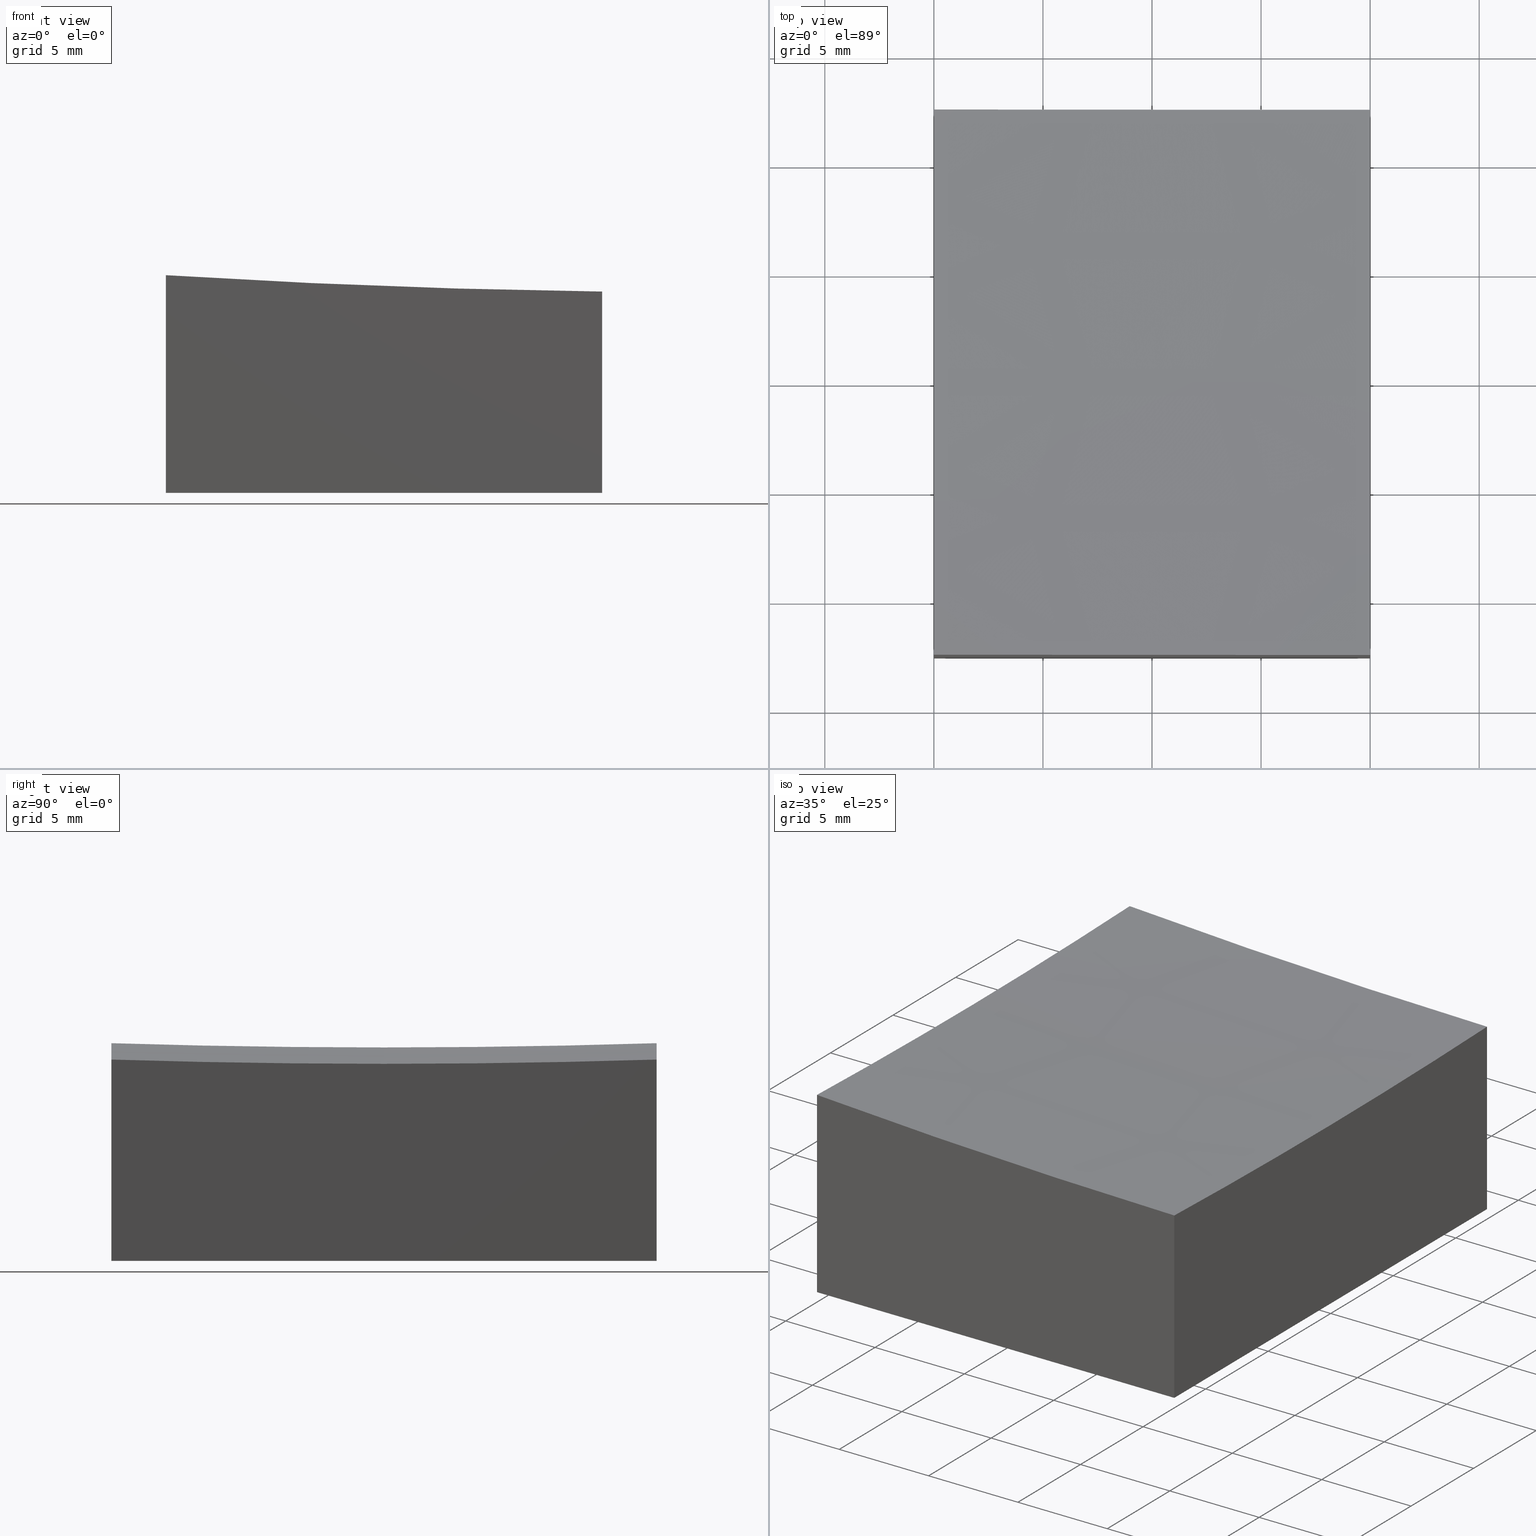
[diagram: canonical four-view strip — front | top / right | iso, engineering-drawing reading convention]
A machine part, canonical four-view strip (front | top / right | iso — engineering-drawing reading convention). The complete STEP part file that produces these views, byte-faithful:
ISO-10303-21;
HEADER;
FILE_DESCRIPTION (( 'STEP AP203' ),
    '1' );
FILE_NAME ('270639.step',
    '2024-12-24T02:21:37',
    ( '' ),
    ( '' ),
    'SwSTEP 2.0',
    'SolidWorks 2020',
    '' );
FILE_SCHEMA (( 'CONFIG_CONTROL_DESIGN' ));
ENDSEC;

DATA;
#1 = ADVANCED_FACE ( 'NONE', ( #100 ), #181, .F. ) ;
#2 = CARTESIAN_POINT ( 'NONE',  ( -9.999999999999996447, -12.50000000000000355, -0.02224248780913207213 ) ) ;
#3 =( LENGTH_UNIT ( ) NAMED_UNIT ( * ) SI_UNIT ( .MILLI., .METRE. ) );
#4 = DIRECTION ( 'NONE',  ( -0.000000000000000000, -0.000000000000000000, -1.000000000000000000 ) ) ;
#5 = ORIENTED_EDGE ( 'NONE', *, *, #190, .T. ) ;
#6 = DIRECTION ( 'NONE',  ( 1.000000000000000000, 0.000000000000000000, 0.000000000000000000 ) ) ;
#7 = CARTESIAN_POINT ( 'NONE',  ( 10.00000000000000178, 12.50000000000000000, -10.00000000000000000 ) ) ;
#8 = LINE ( 'NONE', #67, #43 ) ;
#9 = APPLICATION_CONTEXT ( 'configuration controlled 3d designs of mechanical parts and assemblies' ) ;
#10 = ORIENTED_EDGE ( 'NONE', *, *, #73, .F. ) ;
#11 = CARTESIAN_POINT ( 'NONE',  ( 15.00000000000005151, 0.000000000000000000, 399.0000000000000000 ) ) ;
#12 = CARTESIAN_POINT ( 'NONE',  ( -9.999999999999998224, -12.50000000000000355, -10.00000000000000000 ) ) ;
#13 = ADVANCED_FACE ( 'NONE', ( #121 ), #118, .F. ) ;
#14 = ORIENTED_EDGE ( 'NONE', *, *, #164, .T. ) ;
#15 = CARTESIAN_POINT ( 'NONE',  ( -9.999999999999998224, 0.000000000000000000, 399.0000000000000000 ) ) ;
#16 = PERSON_AND_ORGANIZATION ( #237, #109 ) ;
#17 = APPROVAL_DATE_TIME ( #232, #38 ) ;
#18 = CALENDAR_DATE ( 2024, 24, 12 ) ;
#19 = APPLICATION_PROTOCOL_DEFINITION ( 'international standard', 'config_control_design', 1994, #9 ) ;
#20 = LOCAL_TIME ( 10, 21, 37.00000000000000000, #229 ) ;
#21 = ADVANCED_FACE ( 'NONE', ( #33 ), #185, .F. ) ;
#22 = DIRECTION ( 'NONE',  ( -0.000000000000000000, -0.000000000000000000, -1.000000000000000000 ) ) ;
#23 = DIRECTION ( 'NONE',  ( 1.000000000000000000, 1.734723475976807094E-16, -0.000000000000000000 ) ) ;
#24 = AXIS2_PLACEMENT_3D ( 'NONE', #224, #64, #233 ) ;
#25 = DIRECTION ( 'NONE',  ( -1.000000000000000000, 0.000000000000000000, 0.000000000000000000 ) ) ;
#26 = CC_DESIGN_DATE_AND_TIME_ASSIGNMENT ( #148, #85, ( #66 ) ) ;
#27 = DIRECTION ( 'NONE',  ( 0.000000000000000000, -1.000000000000000000, 0.000000000000000000 ) ) ;
#28 =( NAMED_UNIT ( * ) PLANE_ANGLE_UNIT ( ) SI_UNIT ( $, .RADIAN. ) );
#29 = CARTESIAN_POINT ( 'NONE',  ( 0.000000000000000000, 0.000000000000000000, -10.00000000000000000 ) ) ;
#30 = EDGE_CURVE ( 'NONE', #68, #246, #79, .T. ) ;
#31 = DIRECTION ( 'NONE',  ( 0.000000000000000000, 0.000000000000000000, -1.000000000000000000 ) ) ;
#32 = ORIENTED_EDGE ( 'NONE', *, *, #180, .F. ) ;
#33 = FACE_OUTER_BOUND ( 'NONE', #203, .T. ) ;
#34 = ORIENTED_EDGE ( 'NONE', *, *, #208, .T. ) ;
#35 = PRODUCT ( '270639', '270639', '', ( #156 ) ) ;
#36 = PERSON_AND_ORGANIZATION_ROLE ( 'creator' ) ;
#37 = PRODUCT_DEFINITION_SHAPE ( 'NONE', 'NONE',  #145 ) ;
#38 = APPROVAL ( #210, 'δָ��' ) ;
#39 = ADVANCED_BREP_SHAPE_REPRESENTATION ( '270639', ( #157, #257 ), #88 ) ;
#40 = DATE_AND_TIME ( #170, #247 ) ;
#41 = CALENDAR_DATE ( 2024, 24, 12 ) ;
#42 = LINE ( 'NONE', #215, #123 ) ;
#43 = VECTOR ( 'NONE', #23, 1000.000000000000000 ) ;
#44 = ORIENTED_EDGE ( 'NONE', *, *, #51, .T. ) ;
#45 = DIRECTION ( 'NONE',  ( 0.000000000000000000, 0.000000000000000000, 1.000000000000000000 ) ) ;
#46 = ORIENTED_EDGE ( 'NONE', *, *, #54, .T. ) ;
#47 = DIRECTION ( 'NONE',  ( 0.000000000000000000, 0.000000000000000000, 1.000000000000000000 ) ) ;
#48 = AXIS2_PLACEMENT_3D ( 'NONE', #137, #197, #142 ) ;
#49 = DIRECTION ( 'NONE',  ( -1.000000000000000000, 0.000000000000000000, 1.387778780781445676E-16 ) ) ;
#50 = CARTESIAN_POINT ( 'NONE',  ( 10.00000000000000178, -12.50000000000000000, 10.00000000000000000 ) ) ;
#51 = EDGE_CURVE ( 'NONE', #158, #167, #244, .T. ) ;
#52 = DIRECTION ( 'NONE',  ( -1.734723475976807094E-16, 1.000000000000000000, 0.000000000000000000 ) ) ;
#53 = CARTESIAN_POINT ( 'NONE',  ( 10.00000000000000178, 0.000000000000000000, 399.0000000000000000 ) ) ;
#54 = EDGE_CURVE ( 'NONE', #158, #223, #119, .T. ) ;
#55 = VERTEX_POINT ( 'NONE', #76 ) ;
#56 = DIRECTION ( 'NONE',  ( -0.000000000000000000, -0.000000000000000000, -1.000000000000000000 ) ) ;
#57 = ORIENTED_EDGE ( 'NONE', *, *, #51, .F. ) ;
#58 = ADVANCED_FACE ( 'NONE', ( #166 ), #268, .F. ) ;
#59 = COORDINATED_UNIVERSAL_TIME_OFFSET ( 8, 0, .AHEAD. ) ;
#60 = PERSON_AND_ORGANIZATION_ROLE ( 'design_supplier' ) ;
#61 = AXIS2_PLACEMENT_3D ( 'NONE', #11, #178, #49 ) ;
#62 = CC_DESIGN_APPROVAL ( #81, ( #94 ) ) ;
#63 = SECURITY_CLASSIFICATION_LEVEL ( 'unclassified' ) ;
#64 = DIRECTION ( 'NONE',  ( -1.734723475976807094E-16, 1.000000000000000000, 0.000000000000000000 ) ) ;
#65 = AXIS2_PLACEMENT_3D ( 'NONE', #29, #91, #168 ) ;
#66 = SECURITY_CLASSIFICATION ( '', '', #63 ) ;
#67 = CARTESIAN_POINT ( 'NONE',  ( 10.00000000000000178, -12.50000000000000000, -10.00000000000000000 ) ) ;
#68 = VERTEX_POINT ( 'NONE', #139 ) ;
#69 = DIRECTION ( 'NONE',  ( 0.000000000000000000, 0.000000000000000000, 1.000000000000000000 ) ) ;
#70 = ORIENTED_EDGE ( 'NONE', *, *, #164, .F. ) ;
#71 = DIRECTION ( 'NONE',  ( -0.000000000000000000, -1.000000000000000000, -0.000000000000000000 ) ) ;
#72 = APPROVAL_PERSON_ORGANIZATION ( #270, #81, #147 ) ;
#73 = EDGE_CURVE ( 'NONE', #267, #77, #173, .T. ) ;
#74 = DIRECTION ( 'NONE',  ( 0.000000000000000000, 1.000000000000000000, -0.000000000000000000 ) ) ;
#75 = ORIENTED_EDGE ( 'NONE', *, *, #106, .T. ) ;
#76 = CARTESIAN_POINT ( 'NONE',  ( -9.999999999999998224, 12.49999999999999645, -10.00000000000000000 ) ) ;
#77 = VERTEX_POINT ( 'NONE', #7 ) ;
#78 = DIRECTION ( 'NONE',  ( 1.000000000000000000, 0.000000000000000000, 0.000000000000000000 ) ) ;
#79 = CIRCLE ( 'NONE', #211, 399.8046397929868476 ) ;
#80 = AXIS2_PLACEMENT_3D ( 'NONE', #140, #183, #69 ) ;
#81 = APPROVAL ( #252, 'δָ��' ) ;
#82 = EDGE_CURVE ( 'NONE', #223, #199, #125, .T. ) ;
#83 = CLOSED_SHELL ( 'NONE', ( #21, #216, #1, #272, #13, #58, #111 ) ) ;
#84 = CC_DESIGN_APPROVAL ( #38, ( #145 ) ) ;
#85 = DATE_TIME_ROLE ( 'classification_date' ) ;
#86 = PERSON_AND_ORGANIZATION ( #237, #109 ) ;
#87 = AXIS2_PLACEMENT_3D ( 'NONE', #254, #195, #265 ) ;
#88 =( GEOMETRIC_REPRESENTATION_CONTEXT ( 3 ) GLOBAL_UNCERTAINTY_ASSIGNED_CONTEXT ( ( #129 ) ) GLOBAL_UNIT_ASSIGNED_CONTEXT ( ( #3, #28, #222 ) ) REPRESENTATION_CONTEXT ( 'NONE', 'WORKASPACE' ) );
#89 = COORDINATED_UNIVERSAL_TIME_OFFSET ( 8, 0, .AHEAD. ) ;
#90 = PRODUCT_RELATED_PRODUCT_CATEGORY ( 'detail', '', ( #35 ) ) ;
#91 = DIRECTION ( 'NONE',  ( 0.000000000000000000, -0.000000000000000000, 1.000000000000000000 ) ) ;
#92 = CC_DESIGN_PERSON_AND_ORGANIZATION_ASSIGNMENT ( #251, #150, ( #35 ) ) ;
#93 = AXIS2_PLACEMENT_3D ( 'NONE', #15, #78, #174 ) ;
#94 = PRODUCT_DEFINITION_FORMATION_WITH_SPECIFIED_SOURCE ( '�κ�', '', #35, .NOT_KNOWN. ) ;
#95 = ORIENTED_EDGE ( 'NONE', *, *, #82, .F. ) ;
#96 = CARTESIAN_POINT ( 'NONE',  ( 10.00000000000000178, 12.50000000000000000, -10.00000000000000000 ) ) ;
#97 = EDGE_LOOP ( 'NONE', ( #95, #240, #196, #32 ) ) ;
#98 = LINE ( 'NONE', #50, #126 ) ;
#99 = DIRECTION ( 'NONE',  ( -1.000000000000000000, 0.000000000000000000, 1.387778780781445676E-16 ) ) ;
#100 = FACE_OUTER_BOUND ( 'NONE', #136, .T. ) ;
#101 = LINE ( 'NONE', #110, #276 ) ;
#102 = APPLICATION_CONTEXT ( 'configuration controlled 3d designs of mechanical parts and assemblies' ) ;
#103 = PLANE ( 'NONE',  #186 ) ;
#104 = ORIENTED_EDGE ( 'NONE', *, *, #30, .T. ) ;
#105 = FACE_OUTER_BOUND ( 'NONE', #97, .T. ) ;
#106 = EDGE_CURVE ( 'NONE', #175, #158, #149, .T. ) ;
#107 = CALENDAR_DATE ( 2024, 24, 12 ) ;
#108 = DATE_TIME_ROLE ( 'creation_date' ) ;
#109 = ORGANIZATION ( 'δָ��', 'δָ��', '' ) ;
#110 = CARTESIAN_POINT ( 'NONE',  ( 10.00000000000000178, 12.50000000000000000, 10.00000000000000000 ) ) ;
#111 = ADVANCED_FACE ( 'NONE', ( #105 ), #132, .F. ) ;
#112 = ORIENTED_EDGE ( 'NONE', *, *, #255, .T. ) ;
#113 = AXIS2_PLACEMENT_3D ( 'NONE', #242, #74, #99 ) ;
#114 = FACE_OUTER_BOUND ( 'NONE', #134, .T. ) ;
#115 = ORIENTED_EDGE ( 'NONE', *, *, #73, .T. ) ;
#116 = CARTESIAN_POINT ( 'NONE',  ( 10.00000000000000178, 0.000000000000000000, 399.0000000000000000 ) ) ;
#117 = CARTESIAN_POINT ( 'NONE',  ( 10.00000000000000178, -12.50000000000000000, -0.7733733004237630659 ) ) ;
#118 = PLANE ( 'NONE',  #87 ) ;
#119 = CIRCLE ( 'NONE', #93, 399.2179855667827155 ) ;
#120 = ORIENTED_EDGE ( 'NONE', *, *, #255, .F. ) ;
#121 = FACE_OUTER_BOUND ( 'NONE', #143, .T. ) ;
#122 = ORIENTED_EDGE ( 'NONE', *, *, #180, .T. ) ;
#123 = VECTOR ( 'NONE', #22, 1000.000000000000000 ) ;
#124 = VECTOR ( 'NONE', #71, 1000.000000000000000 ) ;
#125 = CIRCLE ( 'NONE', #269, 399.9999999999999432 ) ;
#126 = VECTOR ( 'NONE', #4, 1000.000000000000000 ) ;
#127 = PERSON_AND_ORGANIZATION ( #237, #109 ) ;
#128 = APPROVAL_ROLE ( '' ) ;
#129 = UNCERTAINTY_MEASURE_WITH_UNIT (LENGTH_MEASURE( 1.000000000000000082E-05 ), #3, 'distance_accuracy_value', 'NONE');
#130 = EDGE_CURVE ( 'NONE', #68, #55, #42, .T. ) ;
#131 = LOCAL_TIME ( 10, 21, 37.00000000000000000, #192 ) ;
#132 = SPHERICAL_SURFACE ( 'NONE', #61, 399.9999999999999432 ) ;
#133 = DESIGN_CONTEXT ( 'detailed design', #9, 'design' ) ;
#134 = EDGE_LOOP ( 'NONE', ( #57, #46, #184, #217, #5 ) ) ;
#135 = FACE_OUTER_BOUND ( 'NONE', #153, .T. ) ;
#136 = EDGE_LOOP ( 'NONE', ( #264, #75, #44, #34 ) ) ;
#137 = CARTESIAN_POINT ( 'NONE',  ( -9.999999999999998224, 0.000000000000000000, 399.0000000000000000 ) ) ;
#138 = CC_DESIGN_SECURITY_CLASSIFICATION ( #66, ( #94 ) ) ;
#139 = CARTESIAN_POINT ( 'NONE',  ( -10.00000000000000000, 12.49999999999999645, -0.02224248780913207213 ) ) ;
#140 = CARTESIAN_POINT ( 'NONE',  ( 10.00000000000000178, -12.50000000000000000, 10.00000000000000000 ) ) ;
#141 = DIRECTION ( 'NONE',  ( 1.734723475976807094E-16, -1.000000000000000000, 0.000000000000000000 ) ) ;
#142 = DIRECTION ( 'NONE',  ( 0.000000000000000000, 0.000000000000000000, -1.000000000000000000 ) ) ;
#143 = EDGE_LOOP ( 'NONE', ( #238, #104, #259, #112 ) ) ;
#144 = DIRECTION ( 'NONE',  ( 0.000000000000000000, 0.000000000000000000, 1.000000000000000000 ) ) ;
#145 = PRODUCT_DEFINITION ( 'δ֪', '', #94, #133 ) ;
#146 = ORIENTED_EDGE ( 'NONE', *, *, #190, .F. ) ;
#147 = APPROVAL_ROLE ( '' ) ;
#148 = DATE_AND_TIME ( #107, #214 ) ;
#149 = CIRCLE ( 'NONE', #24, 399.8046397929868476 ) ;
#150 = PERSON_AND_ORGANIZATION_ROLE ( 'design_owner' ) ;
#151 = EDGE_CURVE ( 'NONE', #246, #77, #101, .T. ) ;
#152 = CARTESIAN_POINT ( 'NONE',  ( 15.00000000000004974, 12.50000000000000178, 399.0000000000000000 ) ) ;
#153 = EDGE_LOOP ( 'NONE', ( #261, #14, #122, #245, #115 ) ) ;
#154 = CARTESIAN_POINT ( 'NONE',  ( -9.999999999999996447, 0.000000000000000000, -0.2179855667827079735 ) ) ;
#155 = EDGE_LOOP ( 'NONE', ( #146, #120, #10, #206 ) ) ;
#156 = MECHANICAL_CONTEXT ( 'NONE', #102, 'mechanical' ) ;
#157 = MANIFOLD_SOLID_BREP ( '�г�-��ת8', #83 ) ;
#158 = VERTEX_POINT ( 'NONE', #2 ) ;
#159 = CARTESIAN_POINT ( 'NONE',  ( -9.999999999999998224, -12.50000000000000355, 10.00000000000000000 ) ) ;
#160 = DIRECTION ( 'NONE',  ( -1.000000000000000000, -1.734723475976807094E-16, 0.000000000000000000 ) ) ;
#161 = CC_DESIGN_PERSON_AND_ORGANIZATION_ASSIGNMENT ( #86, #172, ( #94 ) ) ;
#162 = DIRECTION ( 'NONE',  ( 0.000000000000000000, 0.000000000000000000, -1.000000000000000000 ) ) ;
#163 = CARTESIAN_POINT ( 'NONE',  ( -9.999999999999998224, -12.50000000000000355, 10.00000000000000000 ) ) ;
#164 = EDGE_CURVE ( 'NONE', #246, #199, #169, .T. ) ;
#165 = CARTESIAN_POINT ( 'NONE',  ( 10.00000000000000178, -12.50000000000000000, 10.00000000000000000 ) ) ;
#166 = FACE_OUTER_BOUND ( 'NONE', #155, .T. ) ;
#167 = VERTEX_POINT ( 'NONE', #12 ) ;
#168 = DIRECTION ( 'NONE',  ( 1.000000000000000000, 0.000000000000000000, -0.000000000000000000 ) ) ;
#169 = CIRCLE ( 'NONE', #249, 399.9687487792014053 ) ;
#170 = CALENDAR_DATE ( 2024, 24, 12 ) ;
#171 = CALENDAR_DATE ( 2024, 24, 12 ) ;
#172 = PERSON_AND_ORGANIZATION_ROLE ( 'creator' ) ;
#173 = LINE ( 'NONE', #256, #225 ) ;
#174 = DIRECTION ( 'NONE',  ( 0.000000000000000000, 0.000000000000000000, -1.000000000000000000 ) ) ;
#175 = VERTEX_POINT ( 'NONE', #117 ) ;
#176 = LINE ( 'NONE', #96, #212 ) ;
#177 = LINE ( 'NONE', #202, #124 ) ;
#178 = DIRECTION ( 'NONE',  ( 0.000000000000000000, 1.000000000000000000, -0.000000000000000000 ) ) ;
#179 = CIRCLE ( 'NONE', #48, 399.2179855667827155 ) ;
#180 = EDGE_CURVE ( 'NONE', #199, #175, #207, .T. ) ;
#181 = PLANE ( 'NONE',  #234 ) ;
#182 = CARTESIAN_POINT ( 'NONE',  ( 15.00000000000005151, 0.000000000000000000, 399.0000000000000000 ) ) ;
#183 = DIRECTION ( 'NONE',  ( -1.000000000000000000, 0.000000000000000000, 0.000000000000000000 ) ) ;
#184 = ORIENTED_EDGE ( 'NONE', *, *, #228, .T. ) ;
#185 = SPHERICAL_SURFACE ( 'NONE', #113, 399.9999999999999432 ) ;
#186 = AXIS2_PLACEMENT_3D ( 'NONE', #163, #6, #31 ) ;
#187 = CC_DESIGN_PERSON_AND_ORGANIZATION_ASSIGNMENT ( #271, #60, ( #94 ) ) ;
#188 = COORDINATED_UNIVERSAL_TIME_OFFSET ( 8, 0, .AHEAD. ) ;
#189 = VECTOR ( 'NONE', #56, 1000.000000000000000 ) ;
#190 = EDGE_CURVE ( 'NONE', #55, #167, #177, .T. ) ;
#191 = APPROVAL_PERSON_ORGANIZATION ( #193, #38, #128 ) ;
#192 = COORDINATED_UNIVERSAL_TIME_OFFSET ( 8, 0, .AHEAD. ) ;
#193 = PERSON_AND_ORGANIZATION ( #237, #109 ) ;
#194 = DATE_AND_TIME ( #41, #277 ) ;
#195 = DIRECTION ( 'NONE',  ( 1.734723475976807094E-16, -1.000000000000000000, 0.000000000000000000 ) ) ;
#196 = ORIENTED_EDGE ( 'NONE', *, *, #106, .F. ) ;
#197 = DIRECTION ( 'NONE',  ( 1.000000000000000000, 0.000000000000000000, 0.000000000000000000 ) ) ;
#198 = APPROVAL ( #231, 'δָ��' ) ;
#199 = VERTEX_POINT ( 'NONE', #262 ) ;
#200 = APPLICATION_PROTOCOL_DEFINITION ( 'international standard', 'config_control_design', 1994, #102 ) ;
#201 = DIRECTION ( 'NONE',  ( -1.000000000000000000, 0.000000000000000000, 0.000000000000000000 ) ) ;
#202 = CARTESIAN_POINT ( 'NONE',  ( -9.999999999999998224, -12.50000000000000355, -10.00000000000000000 ) ) ;
#203 = EDGE_LOOP ( 'NONE', ( #227, #205, #70, #218 ) ) ;
#204 = DIRECTION ( 'NONE',  ( 0.000000000000000000, 1.000000000000000000, 0.000000000000000000 ) ) ;
#205 = ORIENTED_EDGE ( 'NONE', *, *, #82, .T. ) ;
#206 = ORIENTED_EDGE ( 'NONE', *, *, #208, .F. ) ;
#207 = CIRCLE ( 'NONE', #235, 399.9687487792014053 ) ;
#208 = EDGE_CURVE ( 'NONE', #167, #267, #8, .T. ) ;
#209 = PERSON_AND_ORGANIZATION_ROLE ( 'classification_officer' ) ;
#210 = APPROVAL_STATUS ( 'not_yet_approved' ) ;
#211 = AXIS2_PLACEMENT_3D ( 'NONE', #152, #141, #221 ) ;
#212 = VECTOR ( 'NONE', #160, 1000.000000000000000 ) ;
#213 = APPROVAL_DATE_TIME ( #40, #198 ) ;
#214 = LOCAL_TIME ( 10, 21, 37.00000000000000000, #59 ) ;
#215 = CARTESIAN_POINT ( 'NONE',  ( -9.999999999999998224, 12.49999999999999645, 10.00000000000000000 ) ) ;
#216 = ADVANCED_FACE ( 'NONE', ( #114 ), #103, .F. ) ;
#217 = ORIENTED_EDGE ( 'NONE', *, *, #130, .T. ) ;
#218 = ORIENTED_EDGE ( 'NONE', *, *, #30, .F. ) ;
#219 = CARTESIAN_POINT ( 'NONE',  ( 0.000000000000000000, 0.000000000000000000, 0.000000000000000000 ) ) ;
#220 = DIRECTION ( 'NONE',  ( -0.000000000000000000, -0.000000000000000000, -1.000000000000000000 ) ) ;
#221 = DIRECTION ( 'NONE',  ( 1.000000000000000000, 1.735571129814823690E-16, 0.000000000000000000 ) ) ;
#222 =( NAMED_UNIT ( * ) SI_UNIT ( $, .STERADIAN. ) SOLID_ANGLE_UNIT ( ) );
#223 = VERTEX_POINT ( 'NONE', #154 ) ;
#224 = CARTESIAN_POINT ( 'NONE',  ( 15.00000000000005329, -12.49999999999999822, 399.0000000000000000 ) ) ;
#225 = VECTOR ( 'NONE', #204, 1000.000000000000000 ) ;
#226 = CC_DESIGN_APPROVAL ( #198, ( #66 ) ) ;
#227 = ORIENTED_EDGE ( 'NONE', *, *, #228, .F. ) ;
#228 = EDGE_CURVE ( 'NONE', #223, #68, #179, .T. ) ;
#229 = COORDINATED_UNIVERSAL_TIME_OFFSET ( 8, 0, .AHEAD. ) ;
#230 = APPROVAL_ROLE ( '' ) ;
#231 = APPROVAL_STATUS ( 'not_yet_approved' ) ;
#232 = DATE_AND_TIME ( #171, #20 ) ;
#233 = DIRECTION ( 'NONE',  ( -1.000000000000000000, -1.735571129814823690E-16, 0.000000000000000000 ) ) ;
#234 = AXIS2_PLACEMENT_3D ( 'NONE', #165, #52, #263 ) ;
#235 = AXIS2_PLACEMENT_3D ( 'NONE', #53, #25, #45 ) ;
#236 = EDGE_CURVE ( 'NONE', #175, #267, #98, .T. ) ;
#237 = PERSON ( 'δָ��', 'δָ��', 'δָ��', ('δָ��'), ('δָ��'), ('δָ��') ) ;
#238 = ORIENTED_EDGE ( 'NONE', *, *, #130, .F. ) ;
#239 = PLANE ( 'NONE',  #80 ) ;
#240 = ORIENTED_EDGE ( 'NONE', *, *, #54, .F. ) ;
#241 = APPROVAL_PERSON_ORGANIZATION ( #127, #198, #230 ) ;
#242 = CARTESIAN_POINT ( 'NONE',  ( 15.00000000000005151, 0.000000000000000000, 399.0000000000000000 ) ) ;
#243 = CARTESIAN_POINT ( 'NONE',  ( 10.00000000000000178, -12.50000000000000000, -10.00000000000000000 ) ) ;
#244 = LINE ( 'NONE', #159, #189 ) ;
#245 = ORIENTED_EDGE ( 'NONE', *, *, #236, .T. ) ;
#246 = VERTEX_POINT ( 'NONE', #260 ) ;
#247 = LOCAL_TIME ( 10, 21, 37.00000000000000000, #188 ) ;
#248 = CC_DESIGN_DATE_AND_TIME_ASSIGNMENT ( #273, #108, ( #145 ) ) ;
#249 = AXIS2_PLACEMENT_3D ( 'NONE', #116, #201, #144 ) ;
#250 = SHAPE_DEFINITION_REPRESENTATION ( #37, #39 ) ;
#251 = PERSON_AND_ORGANIZATION ( #237, #109 ) ;
#252 = APPROVAL_STATUS ( 'not_yet_approved' ) ;
#253 = PERSON_AND_ORGANIZATION ( #237, #109 ) ;
#254 = CARTESIAN_POINT ( 'NONE',  ( 10.00000000000000178, 12.50000000000000000, 10.00000000000000000 ) ) ;
#255 = EDGE_CURVE ( 'NONE', #77, #55, #176, .T. ) ;
#256 = CARTESIAN_POINT ( 'NONE',  ( 10.00000000000000178, -12.50000000000000000, -10.00000000000000000 ) ) ;
#257 = AXIS2_PLACEMENT_3D ( 'NONE', #219, #47, #258 ) ;
#258 = DIRECTION ( 'NONE',  ( 1.000000000000000000, 0.000000000000000000, 0.000000000000000000 ) ) ;
#259 = ORIENTED_EDGE ( 'NONE', *, *, #151, .T. ) ;
#260 = CARTESIAN_POINT ( 'NONE',  ( 10.00000000000000178, 12.50000000000000000, -0.7733733004237630659 ) ) ;
#261 = ORIENTED_EDGE ( 'NONE', *, *, #151, .F. ) ;
#262 = CARTESIAN_POINT ( 'NONE',  ( 10.00000000000000178, 0.000000000000000000, -0.9687487792014171095 ) ) ;
#263 = DIRECTION ( 'NONE',  ( -1.000000000000000000, -1.734723475976807094E-16, 0.000000000000000000 ) ) ;
#264 = ORIENTED_EDGE ( 'NONE', *, *, #236, .F. ) ;
#265 = DIRECTION ( 'NONE',  ( 1.000000000000000000, 1.734723475976807094E-16, 0.000000000000000000 ) ) ;
#266 = CC_DESIGN_PERSON_AND_ORGANIZATION_ASSIGNMENT ( #253, #36, ( #145 ) ) ;
#267 = VERTEX_POINT ( 'NONE', #243 ) ;
#268 = PLANE ( 'NONE',  #65 ) ;
#269 = AXIS2_PLACEMENT_3D ( 'NONE', #182, #27, #162 ) ;
#270 = PERSON_AND_ORGANIZATION ( #237, #109 ) ;
#271 = PERSON_AND_ORGANIZATION ( #237, #109 ) ;
#272 = ADVANCED_FACE ( 'NONE', ( #135 ), #239, .F. ) ;
#273 = DATE_AND_TIME ( #18, #131 ) ;
#274 = CC_DESIGN_PERSON_AND_ORGANIZATION_ASSIGNMENT ( #16, #209, ( #66 ) ) ;
#275 = APPROVAL_DATE_TIME ( #194, #81 ) ;
#276 = VECTOR ( 'NONE', #220, 1000.000000000000000 ) ;
#277 = LOCAL_TIME ( 10, 21, 37.00000000000000000, #89 ) ;
ENDSEC;
END-ISO-10303-21;
